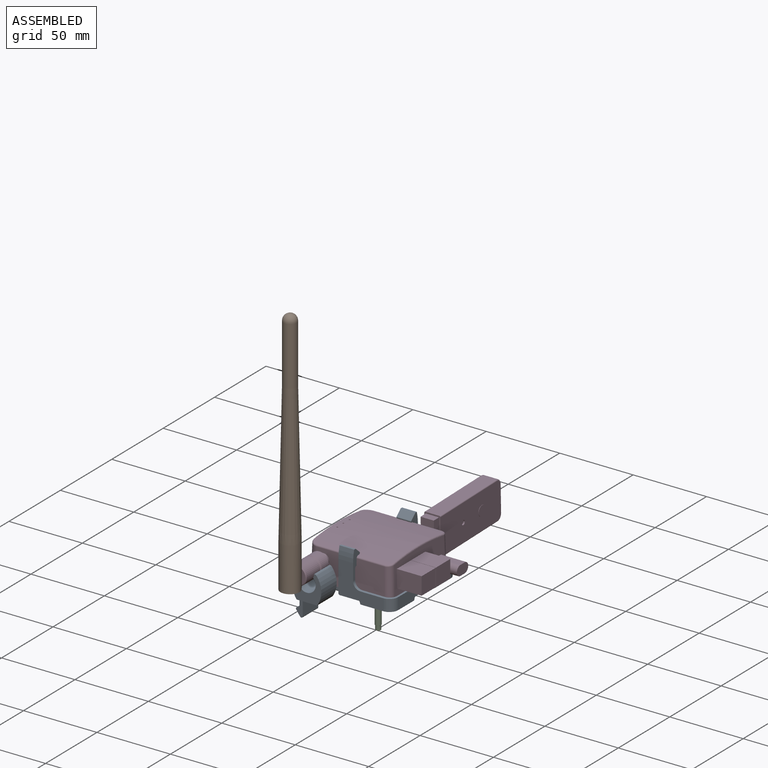
[diagram: assembled view]
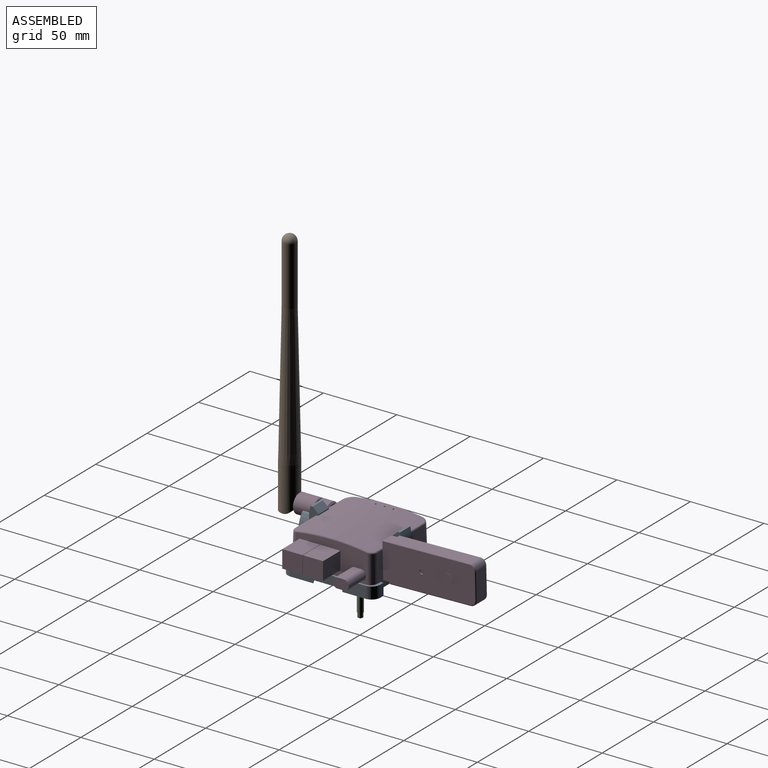
[diagram: assembled view, second angle]
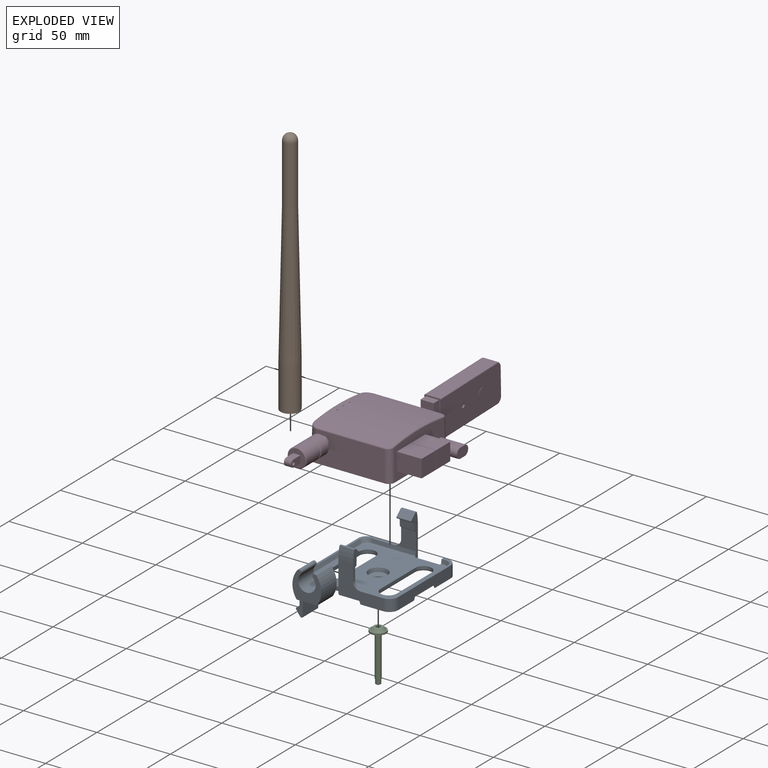
[diagram: exploded view]
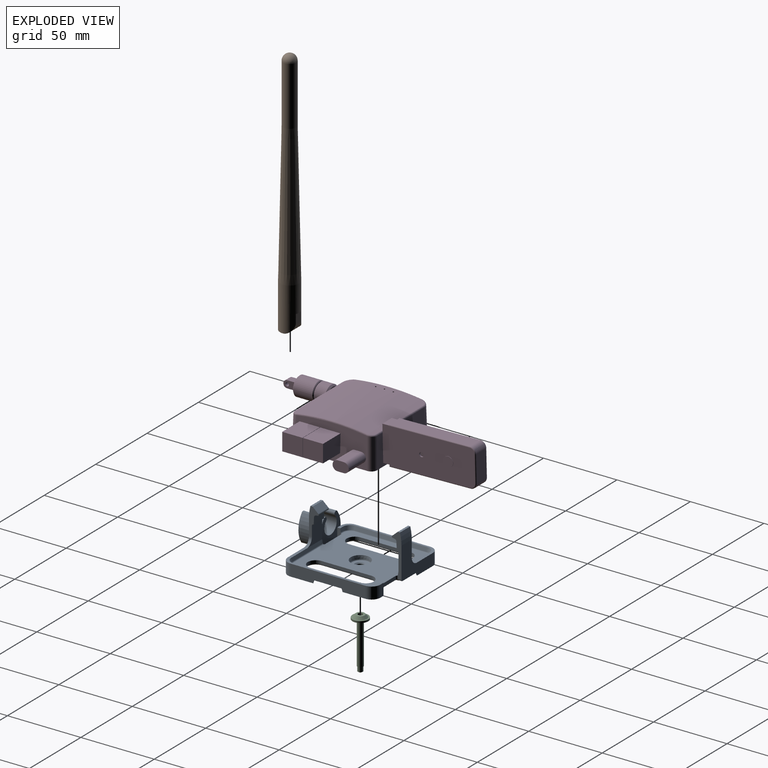
[diagram: exploded view, second angle]
ASSEMBLY  parts=4 mates=3
PART A: 180 faces, bbox 65.4x79.8x43.6 mm
  f0: plane 64.03x22.53mm, normal (0,0,1), area 138.2mm2, adj f1,f6,f10,f20,f21,f32,f55,f57
  f1: plane 30.09x2.42mm, normal (0,-0.99,0.17), area 72.8mm2, adj f0,f36,f55,f82,f90,f136
  f2: cylinder r=3mm len=6mm, axis (0,0,-1), area 24.5mm2, adj f31,f73
  f3: plane 57.02x56.82mm, normal (0,0,1), area 2147.3mm2, adj f34,f37,f62,f63,f64,f65,f66,f67
  f4: plane 63.01x63.01mm, normal (0,0,-1), area 1748.6mm2, adj f6,f10,f11,f15,f100,f101,f102,f103
  f5: cone r=9mm half-angle=20deg, axis (0,0,1), area 45mm2, adj f31,f118,f122,f123
  f6: plane 30.57x24.2mm, normal (0,1,0), area 381.2mm2, adj f0,f4,f13,f36,f46,f61,f87,f89
  f7: plane 5.62x2.5mm, normal (0,-1,0), area 5.7mm2, adj f12,f58,f178
  f8: plane 64.03x22.53mm, normal (0,0,1), area 138.2mm2, adj f9,f11,f15,f16,f18,f19,f35,f54
  f9: plane 30.09x2.42mm, normal (0,0.99,0.17), area 72.8mm2, adj f8,f33,f56,f77,f99,f138
  f10: plane 51.07x8.07mm, normal (-1,0,0), area 369.5mm2, adj f0,f4,f12,f13,f47,f53,f58,f61
  f11: plane 30.54x24.17mm, normal (0,-1,0), area 381.2mm2, adj f4,f8,f14,f33,f51,f59,f76,f81
  f12: plane 37.8x11.82mm, normal (0,0,-1), area 81.6mm2, adj f7,f10,f25,f26,f32,f52,f53,f58
  f13: plane 22.8x22.8mm, normal (0,0,-1), area 74.2mm2, adj f6,f10,f27,f28,f46,f47,f48,f61
  f14: plane 22.8x22.8mm, normal (0,0,-1), area 74.2mm2, adj f11,f15,f23,f24,f49,f50,f51,f59
  f15: plane 51.07x8.07mm, normal (1,0,0), area 369.5mm2, adj f4,f8,f14,f17,f45,f49,f59,f60
  f16: plane 8x3mm, normal (0,1,0), area 24mm2, adj f8,f17,f35,f60
  f17: plane 22.8x10.3mm, normal (0,0,-1), area 51.3mm2, adj f15,f16,f22,f29,f35,f44,f45,f60
  f18: plane 2.59x2.42mm, normal (0,-0.99,0.17), area 5.3mm2, adj f8,f35,f54,f95,f137
  f19: plane 49.48x2.54mm, normal (-0.94,0,0.34), area 132.5mm2, adj f8,f54,f56,f97
  f20: plane 49.48x2.54mm, normal (0.94,0,0.34), area 132.5mm2, adj f0,f55,f57,f92
  f21: plane 2.59x2.42mm, normal (0,0.99,0.17), area 5.3mm2, adj f0,f32,f57,f94,f139
  f22: plane 11.2x1.68mm, normal (-0.94,0,-0.34), area 19.1mm2, adj f17,f44,f45,f102
  f23: plane 11.2x1.68mm, normal (-0.94,0,-0.34), area 19.1mm2, adj f14,f49,f50,f112
  f24: plane 11.2x1.68mm, normal (0,0.94,-0.34), area 19.1mm2, adj f14,f50,f51,f110
  f25: plane 1.67x1.3mm, normal (0,0.94,-0.34), area 1.8mm2, adj f12,f52,f114,f146
  f26: plane 11.2x1.68mm, normal (0.94,0,-0.34), area 19.1mm2, adj f12,f52,f53,f116
  f27: plane 11.2x1.68mm, normal (0.94,0,-0.34), area 19.1mm2, adj f13,f47,f48,f107
  f28: plane 11.2x1.68mm, normal (0,-0.94,-0.34), area 19.1mm2, adj f13,f46,f48,f105
  f29: plane 1.67x1.3mm, normal (0,-0.94,-0.34), area 1.8mm2, adj f17,f44,f100,f153
  f30: cone r=9mm half-angle=20deg, axis (0,0,1), area 45mm2, adj f31,f125,f129,f130
  f31: plane 54.65x18.11mm, normal (0,0,-1), area 318.1mm2, adj f2,f5,f30,f38,f39,f40,f41,f42
  f32: plane 8x2.3mm, normal (1,0,0), area 15.8mm2, adj f0,f12,f21,f139,f145,f146,f166
  f33: plane 29x6.62mm, normal (-1,0,0), area 79.7mm2, adj f9,f11,f74,f75,f76,f77,f78,f79
  f34: plane 15.5x2mm, normal (0,-1,0), area 31mm2, adj f3,f138,f139,f142
  f35: plane 8x2.3mm, normal (-1,0,0), area 15.8mm2, adj f8,f16,f17,f18,f137,f152,f153
  f36: plane 29x6.62mm, normal (1,0,0), area 79.7mm2, adj f1,f6,f82,f83,f84,f85,f86,f87
  f37: plane 15.5x2mm, normal (0,1,0), area 31mm2, adj f3,f136,f137,f149
  f38: plane 16.69x1.67mm, normal (-0.94,0,-0.34), area 29.2mm2, adj f31,f40,f130,f133
  f39: plane 16.69x1.67mm, normal (0.94,0,-0.34), area 29.2mm2, adj f31,f40,f122,f128
  f40: cone r=2mm half-angle=20deg, axis (0,0,1), area 8.8mm2, adj f31,f38,f39,f131
  f41: plane 16.69x1.67mm, normal (0.94,0,-0.34), area 29.2mm2, adj f31,f43,f118,f119
  f42: plane 16.69x1.67mm, normal (-0.94,0,-0.34), area 29.2mm2, adj f31,f43,f124,f125
  f43: cone r=2mm half-angle=20deg, axis (0,0,1), area 8.8mm2, adj f31,f41,f42,f121
  f44: cylinder r=5mm len=5.31mm, axis (-0.32,-0.32,0.89), area 13.7mm2, adj f17,f22,f29,f101
  f45: bspline ~5.08x4.64mm, area 8.3mm2, adj f15,f17,f22,f103
  f46: bspline ~5.77x5.14mm, area 8.3mm2, adj f6,f13,f28,f104
  f47: bspline ~5.08x4.64mm, area 8.3mm2, adj f10,f13,f27,f108
  f48: cylinder r=5mm len=5.31mm, axis (0.32,-0.32,0.89), area 13.7mm2, adj f13,f27,f28,f106
  f49: bspline ~5.77x5.14mm, area 8.3mm2, adj f14,f15,f23,f113
  f50: cylinder r=5mm len=5.31mm, axis (-0.32,0.32,0.89), area 13.7mm2, adj f14,f23,f24,f111
  f51: bspline ~5.08x4.64mm, area 8.3mm2, adj f11,f14,f24,f109
  f52: cylinder r=5mm len=5.31mm, axis (0.32,0.32,0.89), area 13.7mm2, adj f12,f25,f26,f115
  f53: bspline ~5.77x5.14mm, area 8.3mm2, adj f10,f12,f26,f117
  f54: cylinder r=5mm len=5.89mm, axis (-0.34,-0.16,-0.93), area 20.2mm2, adj f8,f18,f19,f96
  f55: cylinder r=5mm len=5.89mm, axis (0.34,-0.16,-0.93), area 20.2mm2, adj f0,f1,f20,f91
  f56: cylinder r=5mm len=5.89mm, axis (-0.34,0.16,-0.93), area 20.2mm2, adj f8,f9,f19,f98
  f57: cylinder r=5mm len=5.89mm, axis (0.34,0.16,-0.93), area 20.2mm2, adj f0,f20,f21,f93
  f58: cylinder r=6mm len=8mm, axis (0,0,1), area 75.4mm2, adj f0,f7,f10,f12,f166
  f59: cylinder r=6mm len=8mm, axis (0,0,-1), area 75.4mm2, adj f8,f11,f14,f15
  f60: cylinder r=6mm len=8mm, axis (0,0,1), area 75.4mm2, adj f8,f15,f16,f17
  f61: cylinder r=6mm len=8mm, axis (0,0,-1), area 75.4mm2, adj f0,f6,f10,f13
  f62: plane 34x2mm, normal (-1,0,0), area 68mm2, adj f3,f63,f65,f157
  f63: cylinder r=5.5mm len=11mm, axis (0,0,-1), area 34.6mm2, adj f3,f62,f64,f155
  f64: plane 34x2mm, normal (1,0,0), area 68mm2, adj f3,f63,f65,f154
  f65: cylinder r=5.5mm len=11mm, axis (0,0,-1), area 34.6mm2, adj f3,f62,f64,f156
  f66: plane 34x2mm, normal (1,0,0), area 68mm2, adj f3,f67,f69,f161
  f67: cylinder r=5.5mm len=11mm, axis (0,0,-1), area 34.6mm2, adj f3,f66,f68,f159
  f68: plane 34x2mm, normal (-1,0,0), area 68mm2, adj f3,f67,f69,f158
  f69: cylinder r=5.5mm len=11mm, axis (0,0,-1), area 34.6mm2, adj f3,f66,f68,f160
  f70: plane 10.77x10.77mm, normal (0,0,1), area 48mm2, adj f72,f73
  f71: cone r=6.5mm half-angle=10deg, axis (0,0,1), area 97.1mm2, adj f3,f72
  f72: torus R=5.38mm, axis (0,0,1), area 35.6mm2, adj f70,f71
  f73: cone r=3.7mm half-angle=45deg, axis (0,0,1), area 20.8mm2, adj f2,f70
  f74: plane 10x3.88mm, normal (0,0.67,0.75), area 52mm2, adj f33,f75,f81,f165
  f75: plane 10x1.5mm, normal (0,0,1), area 15mm2, adj f33,f74,f76,f81
  f76: cylinder r=31.5mm len=10mm, axis (-1,0,0), area 79.6mm2, adj f11,f33,f75,f81
  f77: plane 15x12mm, normal (0,1,0), area 125.4mm2, adj f9,f33,f78,f81,f163
  f78: cylinder r=1.2mm len=10mm, axis (-1,0,0), area 19.4mm2, adj f33,f77,f79,f81
  f79: plane 10x4.54mm, normal (0,1,-0.05), area 45.5mm2, adj f33,f78,f81,f135
  f80: plane 10x1.26mm, normal (0,0.13,-0.99), area 12.7mm2, adj f33,f81,f135,f165
  f81: plane 19x6.62mm, normal (1,0,0), area 58.6mm2, adj f11,f74,f75,f76,f77,f78,f79,f80
  f82: plane 15x12mm, normal (0,-1,0), area 125.4mm2, adj f1,f36,f86,f89,f162
  f83: plane 10x3.88mm, normal (0,-0.67,0.75), area 52mm2, adj f36,f88,f89,f164
  f84: plane 10x1.26mm, normal (0,-0.13,-0.99), area 12.7mm2, adj f36,f89,f134,f164
  f85: plane 10x4.54mm, normal (0,-1,-0.05), area 45.5mm2, adj f36,f86,f89,f134
  f86: cylinder r=1.2mm len=10mm, axis (-1,0,0), area 19.4mm2, adj f36,f82,f85,f89
  f87: cylinder r=31.5mm len=10mm, axis (-1,0,0), area 79.6mm2, adj f6,f36,f88,f89
  f88: plane 10x1.5mm, normal (0,0,1), area 15mm2, adj f36,f83,f87,f89
  f89: plane 19x6.62mm, normal (-1,0,0), area 58.6mm2, adj f6,f82,f83,f84,f85,f86,f87,f88
  f90: cylinder r=0.7mm len=29.59mm, axis (-1,0,0), area 28.8mm2, adj f1,f3,f91,f136
  f91: bspline ~5.62x5.57mm, area 6.3mm2, adj f3,f55,f90,f92
  f92: cylinder r=0.7mm len=48.6mm, axis (0,-1,0), area 41.6mm2, adj f3,f20,f91,f93
  f93: bspline ~5.62x5.57mm, area 6.3mm2, adj f3,f57,f92,f94
  f94: cylinder r=0.7mm len=2.09mm, axis (-1,0,0), area 1.9mm2, adj f3,f21,f93,f139
  f95: cylinder r=0.7mm len=2.09mm, axis (-1,0,0), area 1.9mm2, adj f3,f18,f96,f137
  f96: bspline ~5.62x5.57mm, area 6.3mm2, adj f3,f54,f95,f97
  f97: cylinder r=0.7mm len=48.6mm, axis (0,-1,0), area 41.6mm2, adj f3,f19,f96,f98
  f98: bspline ~5.62x5.57mm, area 6.3mm2, adj f3,f56,f97,f99
  f99: cylinder r=0.7mm len=29.59mm, axis (-1,0,0), area 28.8mm2, adj f3,f9,f98,f138
  f100: cylinder r=0.5mm len=0.85mm, axis (-1,0,0), area 0.4mm2, adj f4,f29,f101,f151,f152
  f101: bspline ~4.7x4.7mm, area 4mm2, adj f4,f44,f100,f102
  f102: cylinder r=0.5mm len=10.59mm, axis (0,-1,0), area 6.5mm2, adj f4,f22,f101,f103
  f103: bspline ~6.14x3.62mm, area 3.3mm2, adj f4,f15,f45,f102
  f104: bspline ~6.14x3.62mm, area 3.3mm2, adj f4,f6,f46,f105
  f105: cylinder r=0.5mm len=10.59mm, axis (-1,0,0), area 6.5mm2, adj f4,f28,f104,f106
  f106: bspline ~4.7x4.7mm, area 4mm2, adj f4,f48,f105,f107
  f107: cylinder r=0.5mm len=10.59mm, axis (0,-1,0), area 6.5mm2, adj f4,f27,f106,f108
  f108: bspline ~6.14x3.62mm, area 3.3mm2, adj f4,f10,f47,f107
  f109: bspline ~6.14x3.62mm, area 3.3mm2, adj f4,f11,f51,f110
  f110: cylinder r=0.5mm len=10.59mm, axis (-1,0,0), area 6.5mm2, adj f4,f24,f109,f111
  f111: bspline ~4.7x4.7mm, area 4mm2, adj f4,f50,f110,f112
  f112: cylinder r=0.5mm len=10.59mm, axis (0,-1,0), area 6.5mm2, adj f4,f23,f111,f113
  f113: bspline ~6.14x3.62mm, area 3.3mm2, adj f4,f15,f49,f112
  f114: cylinder r=0.5mm len=0.85mm, axis (-1,0,0), area 0.4mm2, adj f4,f25,f115,f144,f145
  f115: bspline ~4.7x4.7mm, area 4mm2, adj f4,f52,f114,f116
  f116: cylinder r=0.5mm len=10.59mm, axis (0,-1,0), area 6.5mm2, adj f4,f26,f115,f117
  f117: bspline ~6.14x3.62mm, area 3.3mm2, adj f4,f10,f53,f116
  f118: bspline ~8.92x3.54mm, area 1.2mm2, adj f5,f31,f41,f120
  f119: cylinder r=0.5mm len=16.2mm, axis (0,1,0), area 9.9mm2, adj f4,f41,f120,f121
  f120: sphere r=0.5mm, area 0.3mm2, adj f118,f119,f123
  f121: torus R=2.35mm, axis (0,0,-1), area 4mm2, adj f4,f43,f119,f124
  f122: bspline ~8.76x3.48mm, area 1.2mm2, adj f5,f31,f39,f126
  f123: torus R=10.08mm, axis (0,0,-1), area 16mm2, adj f4,f5,f120,f126
  f124: cylinder r=0.5mm len=16.2mm, axis (0,1,0), area 9.9mm2, adj f4,f42,f121,f127
  f125: bspline ~8.72x3.47mm, area 1.2mm2, adj f30,f31,f42,f127
  f126: sphere r=0.5mm, area 0.3mm2, adj f122,f123,f128
  f127: sphere r=0.5mm, area 0.1mm2, adj f124,f125,f129
  f128: cylinder r=0.5mm len=16.2mm, axis (0,1,0), area 9.9mm2, adj f4,f39,f126,f131
  f129: torus R=10.08mm, axis (0,0,-1), area 16mm2, adj f4,f30,f127,f132
  f130: bspline ~6.72x2.74mm, area 1.2mm2, adj f30,f31,f38,f132
  f131: torus R=2.35mm, axis (0,0,-1), area 4mm2, adj f4,f40,f128,f133
  f132: sphere r=0.5mm, area 0.2mm2, adj f129,f130,f133
  f133: cylinder r=0.5mm len=16.2mm, axis (0,1,0), area 9.9mm2, adj f4,f38,f131,f132
  f134: cylinder r=1.5mm len=10mm, axis (1,0,0), area 20.9mm2, adj f36,f84,f85,f89
  f135: cylinder r=1.5mm len=10mm, axis (1,0,0), area 20.9mm2, adj f33,f79,f80,f81
  f136: cylinder r=1mm len=3.16mm, axis (0,0,1), area 3.5mm2, adj f1,f3,f36,f37,f90,f148
  f137: cylinder r=1mm len=3.38mm, axis (0,0,-1), area 3.5mm2, adj f3,f18,f35,f37,f95,f150,f151
  f138: cylinder r=1mm len=3.16mm, axis (0,0,1), area 3.5mm2, adj f3,f9,f33,f34,f99,f141
  f139: cylinder r=1mm len=3.38mm, axis (0,0,-1), area 3.5mm2, adj f3,f21,f32,f34,f94,f143,f144
  f140: cylinder r=1mm len=2.3mm, axis (0,1,0), area 3.6mm2, adj f4,f11,f33,f141
  f141: torus R=2mm, axis (0,0,-1), area 3.4mm2, adj f4,f138,f140,f142
  f142: cylinder r=1mm len=15.5mm, axis (-1,0,0), area 24.3mm2, adj f4,f34,f141,f143
  f143: torus R=2mm, axis (0,0,-1), area 2.5mm2, adj f4,f139,f142,f144
  f144: bspline ~1.16x1.09mm, area 0.4mm2, adj f114,f139,f143,f145
  f145: torus R=1.5mm, axis (-1,0,0), area 0.9mm2, adj f32,f114,f144,f146
  f146: cylinder r=1mm len=2.36mm, axis (0,-0.34,-0.94), area 3.1mm2, adj f12,f25,f32,f145
  f147: cylinder r=1mm len=2.3mm, axis (0,-1,0), area 3.6mm2, adj f4,f6,f36,f148
  f148: torus R=2mm, axis (0,0,-1), area 3.4mm2, adj f4,f136,f147,f149
  f149: cylinder r=1mm len=15.5mm, axis (1,0,0), area 24.3mm2, adj f4,f37,f148,f150
  f150: torus R=2mm, axis (0,0,-1), area 2.5mm2, adj f4,f137,f149,f151
  f151: bspline ~1.16x1.09mm, area 0.4mm2, adj f100,f137,f150,f152
  f152: torus R=1.5mm, axis (1,0,0), area 0.9mm2, adj f35,f100,f151,f153
  f153: cylinder r=1mm len=2.36mm, axis (0,-0.34,0.94), area 3.1mm2, adj f17,f29,f35,f152
  f154: cylinder r=1mm len=34mm, axis (0,-1,0), area 53.4mm2, adj f4,f64,f155,f156
  f155: torus R=6.5mm, axis (0,0,-1), area 28.9mm2, adj f4,f63,f154,f157
  f156: torus R=6.5mm, axis (0,0,-1), area 28.9mm2, adj f4,f65,f154,f157
  f157: cylinder r=1mm len=34mm, axis (0,1,0), area 53.4mm2, adj f4,f62,f155,f156
  f158: cylinder r=1mm len=34mm, axis (0,1,0), area 53.4mm2, adj f4,f68,f159,f160
  f159: torus R=6.5mm, axis (0,0,-1), area 28.9mm2, adj f4,f67,f158,f161
  f160: torus R=6.5mm, axis (0,0,-1), area 28.9mm2, adj f4,f69,f158,f161
  f161: cylinder r=1mm len=34mm, axis (0,-1,0), area 53.4mm2, adj f4,f66,f159,f160
  f162: cylinder r=5mm len=5mm, axis (0,1,0), area 15.6mm2, adj f0,f6,f82,f89
  f163: cylinder r=5mm len=5mm, axis (0,-1,0), area 15.6mm2, adj f8,f11,f77,f81
  f164: cylinder r=0.7mm len=10mm, axis (-1,0,0), area 16mm2, adj f36,f83,f84,f89
  f165: cylinder r=0.7mm len=10mm, axis (-1,0,0), area 16mm2, adj f33,f74,f80,f81
  f166: plane 29.12x19.67mm, normal (0,1,0), area 218.4mm2, adj f0,f12,f32,f58,f167,f168,f169,f170
  f167: plane 15x3.34mm, normal (-1,0,0), area 50mm2, adj f12,f166,f168,f179
  f168: plane 15x2.04mm, normal (-0.59,0,0.81), area 37.8mm2, adj f166,f167,f169,f179
  f169: cylinder r=1mm len=15mm, axis (0,1,0), area 23.6mm2, adj f166,f168,f170,f179
  f170: plane 15x3.7mm, normal (-0.81,0,-0.59), area 68.4mm2, adj f166,f169,f171,f179
  f171: cylinder r=1mm len=15mm, axis (0,1,0), area 37.7mm2, adj f166,f170,f172,f179
  f172: plane 15x9.32mm, normal (1,0,0), area 139.8mm2, adj f166,f171,f173,f179
  f173: plane 15x9.76mm, normal (0,0,-1), area 146.5mm2, adj f166,f172,f174,f179
  f174: cylinder r=15mm len=18.25mm, axis (0,1,0), area 294.4mm2, adj f166,f173,f175,f179
  f175: cylinder r=1.5mm len=15mm, axis (0,1,0), area 73mm2, adj f166,f174,f176,f179
  f176: cylinder r=6mm len=15mm, axis (0,1,0), area 424.1mm2, adj f166,f175,f177,f179
  f177: cylinder r=1.5mm len=15mm, axis (0,1,0), area 73mm2, adj f166,f176,f178,f179
  f178: cylinder r=15mm len=18.25mm, axis (0,1,0), area 294.4mm2, adj f7,f12,f166,f177,f179
  f179: plane 29.12x19.67mm, normal (0,-1,0), area 236.7mm2, adj f12,f167,f168,f169,f170,f171,f172,f173
PART B: 8 faces, bbox 13x170x13 mm
  f0: plane 13x6.5mm, normal (0,1,0), area 66.4mm2, adj f1,f7
  f1: cylinder r=6.5mm len=30mm, axis (0,1,0), area 1138.5mm2, adj f0,f2,f5,f6,f7
  f2: cone r=4.5mm half-angle=1.2deg, axis (0,1,0), area 3301mm2, adj f1,f3
  f3: cylinder r=4.5mm len=40mm, axis (0,1,0), area 1131mm2, adj f2,f4
  f4: sphere r=4.5mm, area 127.2mm2, adj f3
  f5: plane 5x0.5mm, normal (0,1,0), area 1.7mm2, adj f1,f6
  f6: plane 6x5mm, normal (0,0,1), area 30mm2, adj f1,f5,f7
  f7: cylinder r=6mm len=13mm, axis (-1,0,0), area 89.1mm2, adj f0,f1,f6
PART C: 16 faces, bbox 10.8x10.8x36 mm
  f0: plane 6x6mm, normal (0,0,1), area 20.5mm2, adj f1,f9,f10,f11,f12,f13,f14
  f1: cone r=4.5mm half-angle=39.8deg, axis (0,0,-1), area 55.2mm2, adj f0,f2
  f2: plane 10.8x10.8mm, normal (0,0,1), area 28mm2, adj f1,f3
  f3: cylinder r=5.4mm len=10.8mm, axis (0,0,1), area 40.7mm2, adj f2,f4
  f4: plane 10.8x10.8mm, normal (0,0,-1), area 79mm2, adj f3,f5
  f5: cylinder r=2mm len=28.85mm, axis (0,0,1), area 362.5mm2, adj f4,f6
  f6: cone r=1.7mm half-angle=60deg, axis (0,0,1), area 4mm2, adj f5,f7
  f7: cylinder r=1.7mm len=3.4mm, axis (0,0,1), area 32mm2, adj f6,f8
  f8: cone r=0mm half-angle=60deg, axis (0,0,1), area 10.5mm2, adj f7
  f9: plane 2x1.5mm, normal (0.5,-0.87,0), area 3.5mm2, adj f0,f10,f14,f15
  f10: plane 2x1.73mm, normal (1,0,0), area 3.5mm2, adj f0,f9,f11,f15
  f11: plane 2x1.5mm, normal (0.5,0.87,0), area 3.5mm2, adj f0,f10,f12,f15
  f12: plane 2x1.5mm, normal (-0.5,0.87,0), area 3.5mm2, adj f0,f11,f13,f15
  f13: plane 2x1.73mm, normal (-1,0,0), area 3.5mm2, adj f0,f12,f14,f15
  f14: plane 2x1.5mm, normal (-0.5,-0.87,0), area 3.5mm2, adj f0,f9,f13,f15
  f15: plane 3.46x3mm, normal (0,0,1), area 7.8mm2, adj f9,f10,f11,f12,f13,f14
PART D: 133 faces, bbox 73.6x155.8x29 mm
  f0: plane 47x20.68mm, normal (0,1,0.02), area 794.4mm2, adj f2,f8,f10,f14,f107,f109,f110
  f1: plane 12x12mm, normal (0,-1,0), area 88.1mm2, adj f92,f94,f95,f96,f97
  f2: plane 57.08x57.08mm, normal (0,0,-1), area 1722.7mm2, adj f0,f3,f4,f5,f7,f8,f9,f10
  f3: plane 49.04x23.07mm, normal (1,0,0.03), area 690.8mm2, adj f2,f7,f8,f18,f19,f20,f21,f22
  f4: plane 45x23.03mm, normal (-1,0,0.03), area 1001.7mm2, adj f2,f9,f10,f11
  f5: plane 47x20.68mm, normal (0,-1,0.02), area 910.9mm2, adj f2,f7,f9,f15,f34
  f6: cylinder r=158.05mm len=54.38mm, axis (-1,0,0), area 2926.3mm2, adj f11,f12,f13,f14,f15,f16,f17,f18
  f7: cylinder r=4mm len=21.23mm, axis (-0.03,0.02,1), area 131mm2, adj f2,f3,f5,f17
  f8: cylinder r=4mm len=21.23mm, axis (0.03,0.02,-1), area 131mm2, adj f0,f2,f3,f16
  f9: cylinder r=6mm len=21.6mm, axis (0.03,0.02,1), area 197.9mm2, adj f2,f4,f5,f13
  f10: cylinder r=6mm len=21.6mm, axis (-0.03,0.02,-1), area 197.9mm2, adj f0,f2,f4,f12
  f11: bspline ~44.29x2.52mm, area 68.5mm2, adj f4,f6,f12,f13
  f12: bspline ~7.37x7.3mm, area 12.7mm2, adj f6,f10,f11,f14
  f13: bspline ~7.37x7.3mm, area 12.7mm2, adj f6,f9,f11,f15
  f14: cylinder r=1mm len=45.92mm, axis (-1,0,0), area 63.1mm2, adj f0,f6,f12,f16,f106
  f15: cylinder r=1mm len=45.92mm, axis (-1,0,0), area 63.1mm2, adj f5,f6,f13,f17
  f16: bspline ~4.92x4.87mm, area 8.2mm2, adj f6,f8,f14,f18
  f17: bspline ~4.92x4.87mm, area 8.2mm2, adj f6,f7,f15,f18
  f18: bspline ~48.32x2.82mm, area 74.8mm2, adj f3,f6,f16,f17
  f19: plane 16.78x4.2mm, normal (0,0,1), area 70.5mm2, adj f3,f20,f22,f23
  f20: cylinder r=3.4mm len=16.78mm, axis (-1,0,0), area 174.6mm2, adj f3,f19,f21,f23
  f21: plane 16.6x4.41mm, normal (0,0,-1), area 73.3mm2, adj f3,f20,f22,f23
  f22: cylinder r=3.4mm len=16.78mm, axis (-1,0,0), area 178.3mm2, adj f3,f19,f21,f23
  f23: plane 11x6.8mm, normal (1,0,0), area 64.9mm2, adj f19,f20,f21,f22
  f24: plane 16.97x13.8mm, normal (0,0,1), area 234.2mm2, adj f3,f25,f27,f28
  f25: plane 16.97x12mm, normal (0,-1,0), area 201.8mm2, adj f3,f24,f26,f28
  f26: plane 16.66x13.8mm, normal (0,0,-1), area 229.9mm2, adj f3,f25,f27,f28
  f27: plane 16.97x12mm, normal (0,1,0), area 201.8mm2, adj f3,f24,f26,f28
  f28: plane 13.8x12mm, normal (1,0,0), area 165.6mm2, adj f24,f25,f26,f27
  f29: plane 16.97x13.8mm, normal (0,0,1), area 234.2mm2, adj f3,f30,f32,f33
  f30: plane 16.97x12mm, normal (0,-1,0), area 201.8mm2, adj f3,f29,f31,f33
  f31: plane 16.66x13.8mm, normal (0,0,-1), area 229.9mm2, adj f3,f30,f32,f33
  f32: plane 16.97x12mm, normal (0,1,0), area 201.8mm2, adj f3,f29,f31,f33
  f33: plane 13.8x12mm, normal (1,0,0), area 165.6mm2, adj f29,f30,f31,f32
  f34: cylinder r=4mm len=8mm, axis (0,1,0), area 71mm2, adj f5,f87
  f35: plane 32x0.1mm, normal (0,-1,0), area 3.2mm2, adj f2,f36,f42,f43
  f36: plane 47x0.1mm, normal (-1,0,0), area 4.7mm2, adj f2,f35,f37,f43
  f37: plane 32x0.1mm, normal (0,1,0), area 3.2mm2, adj f2,f36,f42,f43
  f38: plane 15x0.1mm, normal (1,0,0), area 1.5mm2, adj f39,f41,f43,f44
  f39: plane 15x0.1mm, normal (0,1,0), area 1.5mm2, adj f38,f40,f43,f44
  f40: plane 15x0.1mm, normal (-1,0,0), area 1.5mm2, adj f39,f41,f43,f44
  f41: plane 15x0.1mm, normal (0,-1,0), area 1.5mm2, adj f38,f40,f43,f44
  f42: plane 47x0.1mm, normal (1,0,0), area 4.7mm2, adj f2,f35,f37,f43
  f43: plane 47x32mm, normal (0,0,-1), area 1279mm2, adj f35,f36,f37,f38,f39,f40,f41,f42
  f44: plane 15x15mm, normal (0,0,-1), area 154.4mm2, adj f38,f39,f40,f41,f50,f51,f52,f53
  f45: extruded ~1.78x0.45mm, area 0.2mm2, adj f46,f62,f63,f85
  f46: extruded ~1.78x0.45mm, area 0.2mm2, adj f45,f47,f63,f85
  f47: extruded ~1.34x0.6mm, area 0.2mm2, adj f46,f48,f63,f85
  f48: extruded ~2.38x1.78mm, area 0.3mm2, adj f47,f49,f63,f85
  f49: extruded ~2.37x1.79mm, area 0.3mm2, adj f48,f62,f63,f85
  f50: extruded ~2.08x0.44mm, area 0.2mm2, adj f44,f51,f61,f63
  f51: extruded ~2.69x0.86mm, area 0.3mm2, adj f44,f50,f52,f63
  f52: extruded ~2.48x0.93mm, area 0.3mm2, adj f44,f51,f53,f63
  f53: extruded ~2.49x0.93mm, area 0.3mm2, adj f44,f52,f54,f63
  f54: extruded ~2.69x0.87mm, area 0.3mm2, adj f44,f53,f55,f63
  f55: extruded ~2.7x0.87mm, area 0.3mm2, adj f44,f54,f56,f63
  f56: extruded ~2.49x0.94mm, area 0.3mm2, adj f44,f55,f57,f63
  f57: plane 0.11x0.1mm, normal (1,0,0), area 0mm2, adj f44,f56,f58,f63
  f58: plane 1.58x1.29mm, normal (0.63,0.77,0), area 0.2mm2, adj f44,f57,f59,f63
  f59: plane 1.91x0.1mm, normal (1,0,0), area 0.2mm2, adj f44,f58,f60,f63
  f60: plane 1.89x1.7mm, normal (-0.67,-0.75,0), area 0.3mm2, adj f44,f59,f61,f63
  f61: extruded ~1.29x1.23mm, area 0.2mm2, adj f44,f50,f60,f63
  f62: extruded ~1.34x0.6mm, area 0.2mm2, adj f45,f49,f63,f85
  f63: plane 8.83x6.7mm, normal (0,0,-1), area 29.1mm2, adj f45,f46,f47,f48,f49,f50,f51,f52
  f64: plane 2.7x0.1mm, normal (0,-1,0), area 0.3mm2, adj f44,f65,f82,f83
  f65: plane 0.79x0.1mm, normal (1,0,0), area 0.1mm2, adj f44,f64,f66,f83
  f66: plane 2.7x1.68mm, normal (0.53,0.85,0), area 0.3mm2, adj f44,f65,f67,f83
  f67: plane 1.66x0.1mm, normal (1,0,0), area 0.2mm2, adj f44,f66,f68,f83
  f68: extruded ~3.07x2.07mm, area 0.4mm2, adj f44,f67,f69,f83
  f69: extruded ~0.97x0.76mm, area 0.1mm2, adj f44,f68,f70,f83
  f70: extruded ~1.11x0.34mm, area 0.1mm2, adj f44,f69,f71,f83
  f71: extruded ~1.59x0.69mm, area 0.2mm2, adj f44,f70,f72,f83
  f72: extruded ~2.12x0.52mm, area 0.2mm2, adj f44,f71,f73,f83
  f73: plane 2.05x0.1mm, normal (-1,0,0), area 0.2mm2, adj f44,f72,f74,f83
  f74: plane 7.04x0.1mm, normal (0,1,0), area 0.7mm2, adj f44,f73,f82,f83
  f75: plane 0.48x0.1mm, normal (-1,0,0), area 0mm2, adj f76,f81,f83,f84
  f76: plane 1.9x0.1mm, normal (0,-1,0), area 0.2mm2, adj f75,f77,f83,f84
  f77: plane 0.45x0.1mm, normal (1,0,0), area 0mm2, adj f76,f78,f83,f84
  f78: extruded ~1.07x0.21mm, area 0.1mm2, adj f77,f79,f83,f84
  f79: extruded ~0.71x0.34mm, area 0.1mm2, adj f78,f80,f83,f84
  f80: extruded ~0.74x0.34mm, area 0.1mm2, adj f79,f81,f83,f84
  f81: extruded ~1.05x0.24mm, area 0.1mm2, adj f75,f80,f83,f84
  f82: plane 1.49x0.1mm, normal (1,0,0), area 0.1mm2, adj f44,f64,f74,f83
  f83: plane 7.04x5.62mm, normal (0,0,-1), area 24.2mm2, adj f64,f65,f66,f67,f68,f69,f70,f71
  f84: plane 1.9x1.86mm, normal (0,0,-1), area 3.1mm2, adj f75,f76,f77,f78,f79,f80,f81
  f85: plane 4.75x3.57mm, normal (0,0,-1), area 14.1mm2, adj f45,f46,f47,f48,f49,f62
  f86: cylinder r=6.5mm len=13mm, axis (0,1,0), area 285.9mm2, adj f88,f89
  f87: plane 11x11mm, normal (0,1,0), area 44.8mm2, adj f34,f89
  f88: cone r=5.5mm half-angle=45deg, axis (0,1,0), area 53.3mm2, adj f86,f91
  f89: cone r=6.5mm half-angle=45deg, axis (0,-1,0), area 53.3mm2, adj f86,f87
  f90: cylinder r=6.5mm len=13mm, axis (0,1,0), area 530.9mm2, adj f92,f93
  f91: plane 12x12mm, normal (0,1,0), area 18.1mm2, adj f88,f93
  f92: cone r=6mm half-angle=45deg, axis (0,1,0), area 27.8mm2, adj f1,f90
  f93: cone r=6.5mm half-angle=45deg, axis (0,-1,0), area 27.8mm2, adj f90,f91
  f94: plane 9x5mm, normal (1,0,0), area 37.4mm2, adj f1,f95,f97,f98,f99
  f95: plane 6.5x5mm, normal (0,0,1), area 32.5mm2, adj f1,f94,f96,f98
  f96: plane 9x5mm, normal (-1,0,0), area 37.4mm2, adj f1,f95,f97,f98,f99
  f97: plane 6.5x5mm, normal (0,0,-1), area 32.5mm2, adj f1,f94,f96,f98
  f98: cylinder r=2.5mm len=5mm, axis (-1,0,0), area 39.3mm2, adj f94,f95,f96,f97
  f99: cylinder r=1.25mm len=5mm, axis (1,0,0), area 39.3mm2, adj f94,f96
  f100: plane 58.78x25.87mm, normal (1,0,0), area 1384mm2, adj f105,f118,f119,f120,f121,f122,f123,f125
  f101: plane 54.99x9.6mm, normal (0,0.02,-1), area 528mm2, adj f105,f112,f117,f122
  f102: plane 58.78x25.87mm, normal (-1,0,0), area 1429.5mm2, adj f105,f113,f114,f115,f116,f117
  f103: plane 54.99x9.6mm, normal (0,-0.02,1), area 528mm2, adj f105,f111,f113,f118
  f104: plane 18x9.6mm, normal (0,1,0.02), area 172.8mm2, adj f111,f112,f115,f120
  f105: plane 25.99x11mm, normal (0,-1,-0.02), area 69.6mm2, adj f100,f101,f102,f103,f107,f108,f109,f110
  f106: plane 9x5.47mm, normal (0,-1,-0.02), area 49.3mm2, adj f14,f107,f108,f109
  f107: plane 24.11x5.56mm, normal (1,0,0), area 120mm2, adj f0,f105,f106,f108,f110
  f108: plane 9x5mm, normal (0,-0.02,1), area 45mm2, adj f105,f106,f107,f109
  f109: plane 24.11x5.56mm, normal (-1,0,0), area 120mm2, adj f0,f105,f106,f108,f110
  f110: plane 9x5mm, normal (0,0.02,-1), area 45mm2, adj f0,f105,f107,f109
  f111: cylinder r=4mm len=9.6mm, axis (-1,0,0), area 60.3mm2, adj f103,f104,f114,f119
  f112: cylinder r=4mm len=9.6mm, axis (1,0,0), area 60.3mm2, adj f101,f104,f116,f121
  f113: cylinder r=0.7mm len=55mm, axis (0,-1,-0.02), area 60.5mm2, adj f102,f103,f105,f114
  f114: torus R=3.3mm, axis (1,0,0), area 6.5mm2, adj f102,f111,f113,f115
  f115: cylinder r=0.7mm len=18.01mm, axis (0,0.02,-1), area 19.8mm2, adj f102,f104,f114,f116
  f116: torus R=3.3mm, axis (1,0,0), area 6.5mm2, adj f102,f112,f115,f117
  f117: cylinder r=0.7mm len=55mm, axis (0,1,0.02), area 60.5mm2, adj f101,f102,f105,f116
  f118: cylinder r=0.7mm len=55mm, axis (0,1,0.02), area 60.5mm2, adj f100,f103,f105,f119
  f119: torus R=3.3mm, axis (1,0,0), area 6.5mm2, adj f100,f111,f118,f120
  f120: cylinder r=0.7mm len=18.01mm, axis (0,-0.02,1), area 19.8mm2, adj f100,f104,f119,f121
  f121: torus R=3.3mm, axis (1,0,0), area 6.5mm2, adj f100,f112,f120,f122
  f122: cylinder r=0.7mm len=55mm, axis (0,-1,-0.02), area 60.5mm2, adj f100,f101,f105,f121
  f123: cylinder r=1.5mm len=3mm, axis (1,0,0), area 9.4mm2, adj f100,f124
  f124: plane 3x3mm, normal (1,0,0), area 7.1mm2, adj f123
  f125: cylinder r=3.5mm len=7mm, axis (-1,0,0), area 4.4mm2, adj f100,f126
  f126: plane 7x7mm, normal (1,0,0), area 38.5mm2, adj f125
  f127: cylinder r=0.5mm len=23.9mm, axis (0,0,-1), area 75.1mm2, adj f6,f128
  f128: plane 1x1mm, normal (0,0,1), area 0.8mm2, adj f127
  f129: cylinder r=0.5mm len=23.79mm, axis (0,0,-1), area 74.7mm2, adj f6,f130
  f130: plane 1x1mm, normal (0,0,1), area 0.8mm2, adj f129
  f131: cylinder r=0.5mm len=23.79mm, axis (0,0,-1), area 74.7mm2, adj f6,f132
  f132: plane 1x1mm, normal (0,0,1), area 0.8mm2, adj f131
PLACE A t=(-2.19,-16.2,1.18)mm
PLACE B rot(axis=(-1,0,0),90deg) t=(-2.32,-90.7,-40.32)mm
PLACE C t=(-2.19,-16.2,3.18)mm
PLACE D t=(-2.32,-16.2,6.18)mm
MATE revolute B.f7 <-> D.f98  axis (1,0,0) through (-19.82,-76.7,20.18)mm
MATE fastened D.f44 <-> A.f71  axis (0,0,-1) through (-2.19,-16.2,6.18)mm
MATE fastened C.f1 <-> A.f71  axis (0,0,1) through (-2.19,-16.2,6.18)mm
